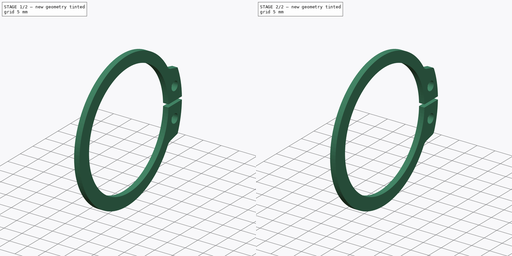
[diagram: build sequence overview — one tinted view per stage of 2, left to right]
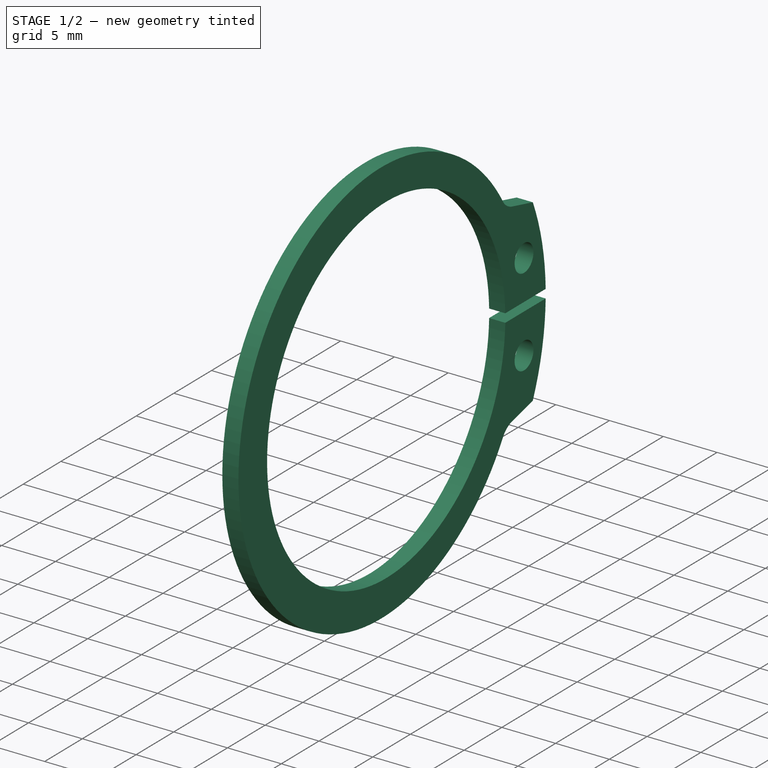
[diagram: stage 1 of 2 — iso view after this stage's code; geometry added in this stage tinted green]
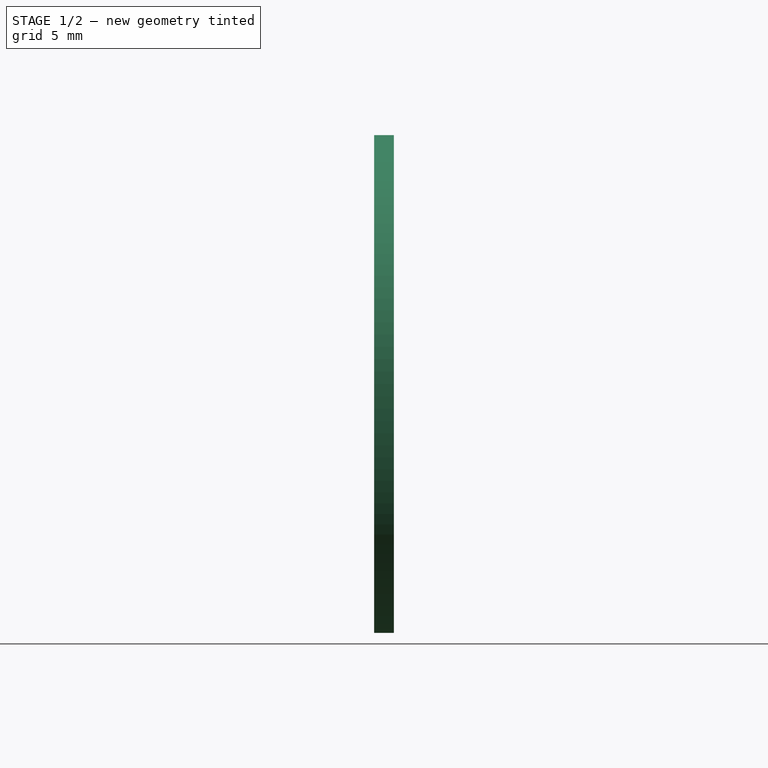
[diagram: stage 1 of 2 — front view after this stage's code; geometry added in this stage tinted green]
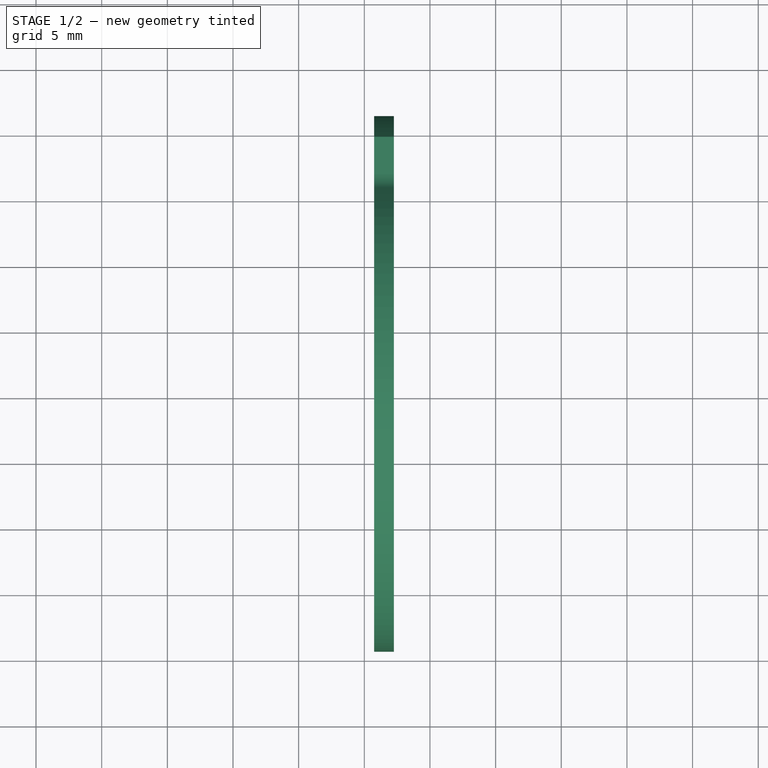
[diagram: stage 1 of 2 — top view after this stage's code; geometry added in this stage tinted green]
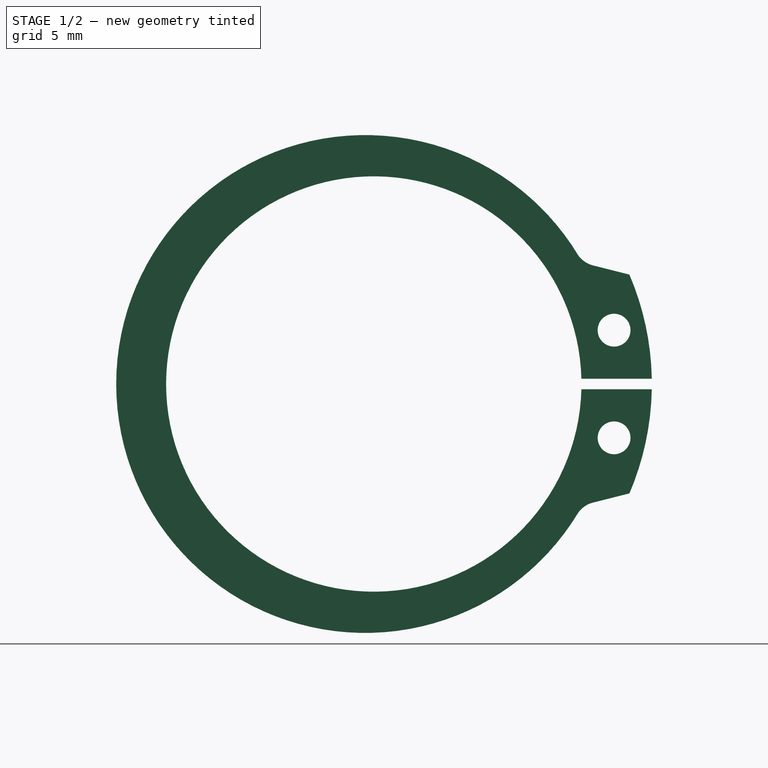
[diagram: stage 1 of 2 — right view after this stage's code; geometry added in this stage tinted green]
FCSTD DOCUMENT  (FreeCAD 0.15R4671 (Git))
Label: DIN471_CLASS_A_M34RetainingRings
License: CreativeCommons Attribution-ShareAlike
LicenseURL: http://creativecommons.org/licenses/by-sa/4.0/
objects: Sketcher::SketchObject×1, PartDesign::Pad×1, PartDesign::Mirrored×1, PartDesign::Fillet×1
note: 5 computed .brp shape members not serialized (recipe doc carries the construction recipe); baked Part::Feature solids carry a one-line shape summary decoded from their .brp

FEATURE [Sketcher::SketchObject] Sketch
  Placement = pos=(0.75,0,0) rot=(0.57735,0.57735,0.57735;2.0944rad)
  sketch-geometry (8):
    g0: Circle CenterX=18.3 CenterY=4.1 CenterZ=0 NormalX=0 NormalY=0 NormalZ=1 Radius=1.25
    g1: ArcOfCircle CenterX=0 CenterY=0 CenterZ=0 NormalX=0 NormalY=0 NormalZ=1 Radius=21.1762 StartAngle=0.0190115 EndAngle=0.404333
    g2: ArcOfCircle CenterX=0 CenterY=0 CenterZ=0 NormalX=0 NormalY=0 NormalZ=1 Radius=15.8161 StartAngle=0.0252672 EndAngle=3.14159
    g3: ArcOfCircle CenterX=-0.658031 CenterY=0 CenterZ=0 NormalX=0 NormalY=0 NormalZ=1 Radius=18.9581 StartAngle=0.543608 EndAngle=3.14159
    g4: LineSegment StartX=-19.6161 StartY=0 StartZ=0 EndX=-15.8161 EndY=0 EndZ=0
    g5: LineSegment StartX=15.8111 StartY=0.399586 StartZ=0 EndX=21.1724 EndY=0.402568 EndZ=0
    g6: LineSegment StartX=19.4687 StartY=8.33083 StartZ=0 EndX=16.6191 EndY=9.05211 EndZ=0
    g7: ArcOfCircle CenterX=17.1952 CenterY=10.9673 CenterZ=0 NormalX=0 NormalY=0 NormalZ=1 Radius=2 StartAngle=3.76137 EndAngle=4.42019
  constraints (27):
    c: Radius(g0) = 1.25
    c: DistanceY(g-1,g0) = 4.1
    c: DistanceX(g-1,g0) = 18.3
    c: Coincident(g1,g-1)
    c: Coincident(g2,g-1)
    c: PointOnObject(g2,g-1)
    c: PointOnObject(g3,g-1)
    c: PointOnObject(g3,g-1)
    c: Coincident(g4,g2)
    c: Horizontal(g4)
    c: Coincident(g4,g3)
    c: DistanceX(g4) = 3.8
    c: Coincident(g5,g2)
    c: Coincident(g5,g1)
    c: Coincident(g6,g1)
    c: Coincident(g7,g3)
    c: Coincident(g7,g6)
    c: Radius(g7) = 2
    c: DistanceX(g6) = -2.84956
    c: DistanceX(g-1,g3) = -0.658031
    c: Radius(g1) = 21.1762
    c: DistanceY(g-1,g1) = 0.402568
    c: DistanceY(g-1,g2) = 0.399586
    c: DistanceX(g-1,g3) = 15.5672
    c: DistanceX(g-1,g6) = 16.6191
    c: Radius(g2) = 15.8161
    c: DistanceY(g6) = 9.05211
FEATURE [PartDesign::Pad] Pad
  Length = 1.5
  Length2 = 100
  Placement = pos=(0.75,0,0) rot=(0.57735,0.57735,0.57735;2.0944rad)
  Sketch = -> Sketch
  Type = 0
FEATURE [PartDesign::Mirrored] Mirrored
  MirrorPlane = -> Sketch [H_Axis]
  Originals = -> [Pad]
  Placement = pos=(0.75,0,0) rot=(0.57735,0.57735,0.57735;2.0944rad)
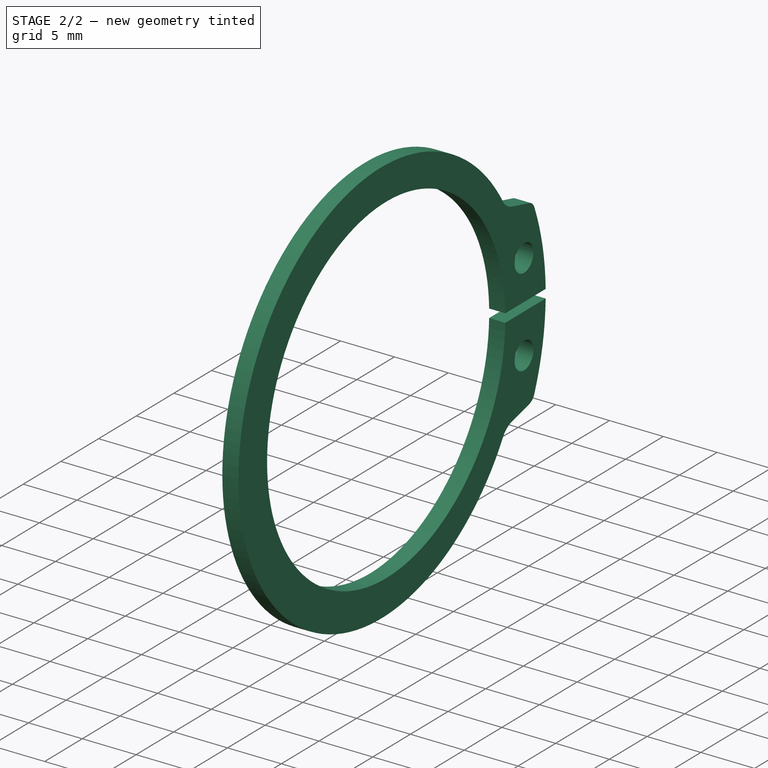
[diagram: stage 2 of 2 — iso view after this stage's code; geometry added in this stage tinted green]
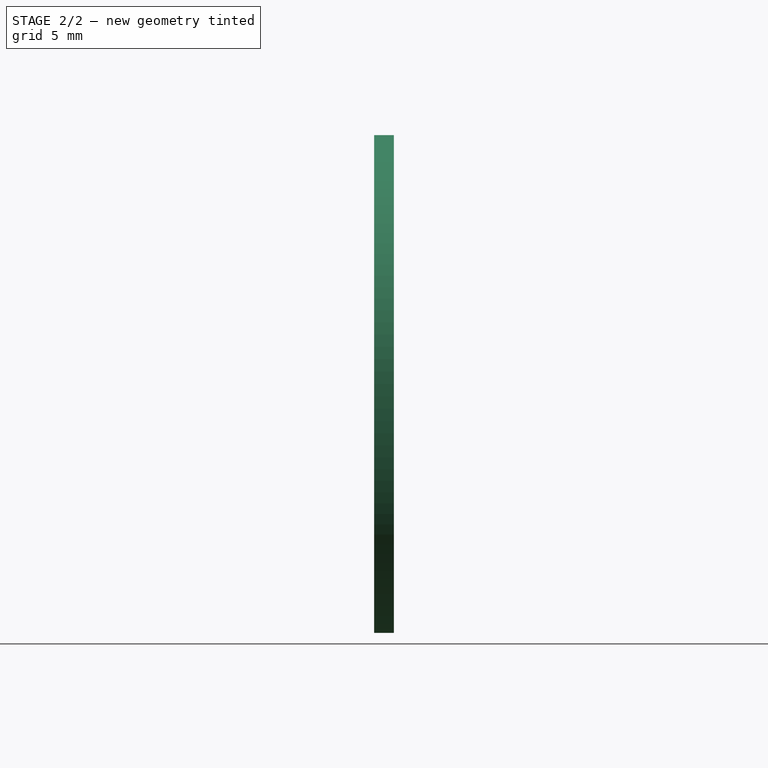
[diagram: stage 2 of 2 — front view after this stage's code; geometry added in this stage tinted green]
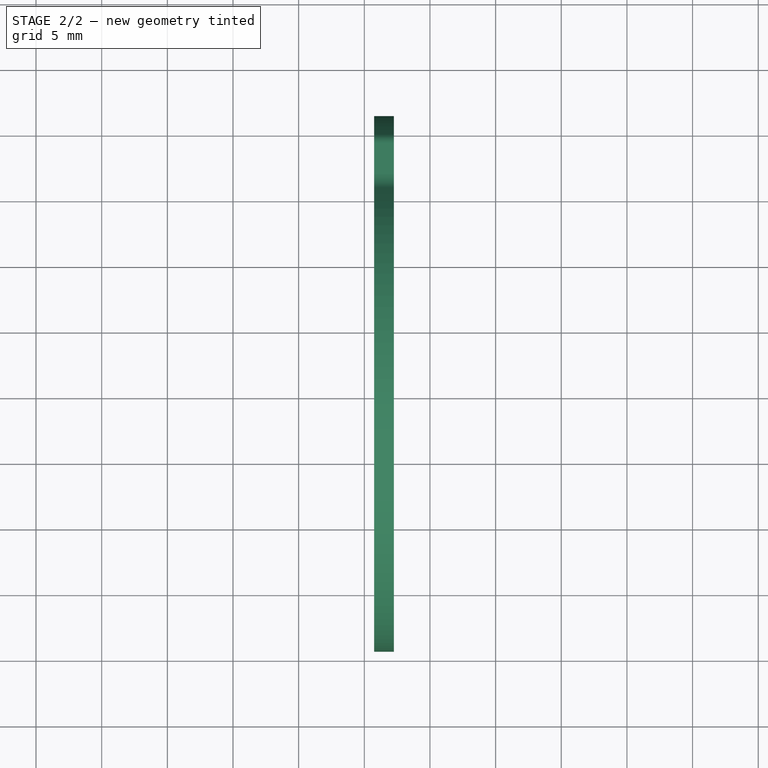
[diagram: stage 2 of 2 — top view after this stage's code; geometry added in this stage tinted green]
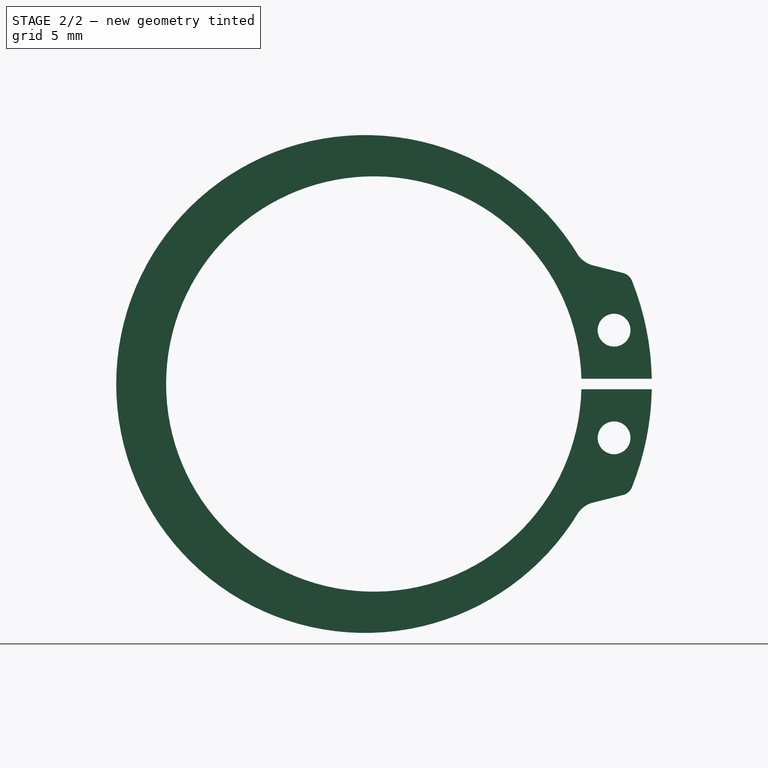
[diagram: stage 2 of 2 — right view after this stage's code; geometry added in this stage tinted green]
FEATURE [PartDesign::Fillet] Fillet
  Base = -> Mirrored [Edge5,Edge27]
  Placement = pos=(0.75,0,0) rot=(0.57735,0.57735,0.57735;2.0944rad)
  Radius = 1
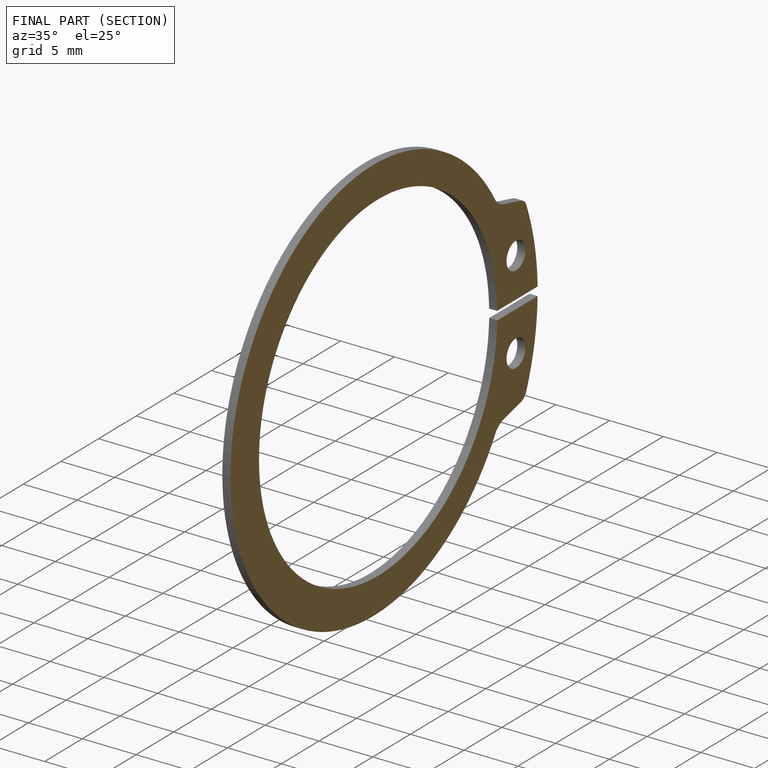
[diagram: finished part — half-section view (interior)]
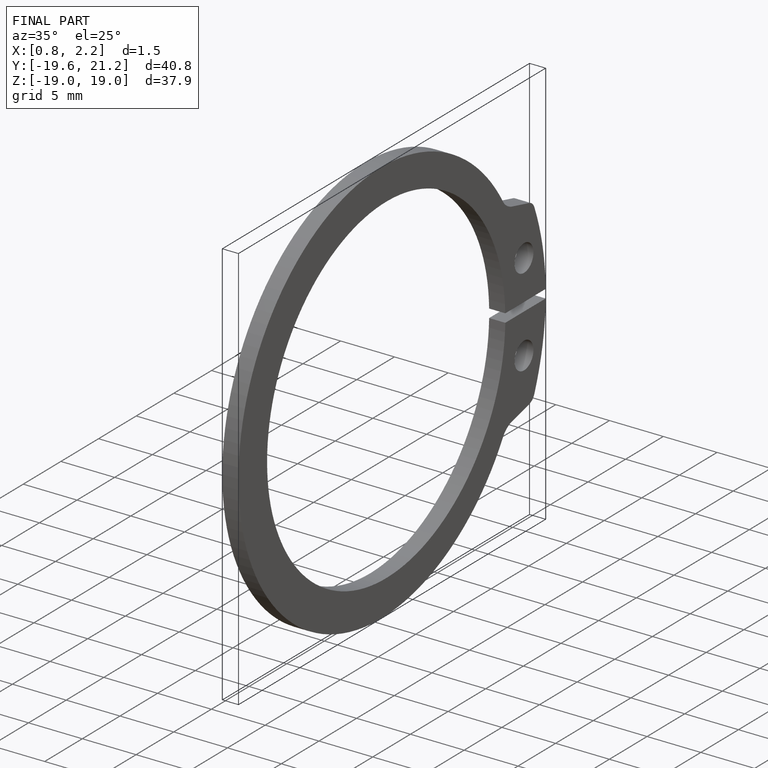
[diagram: finished part — iso view with bounding-box wireframe]
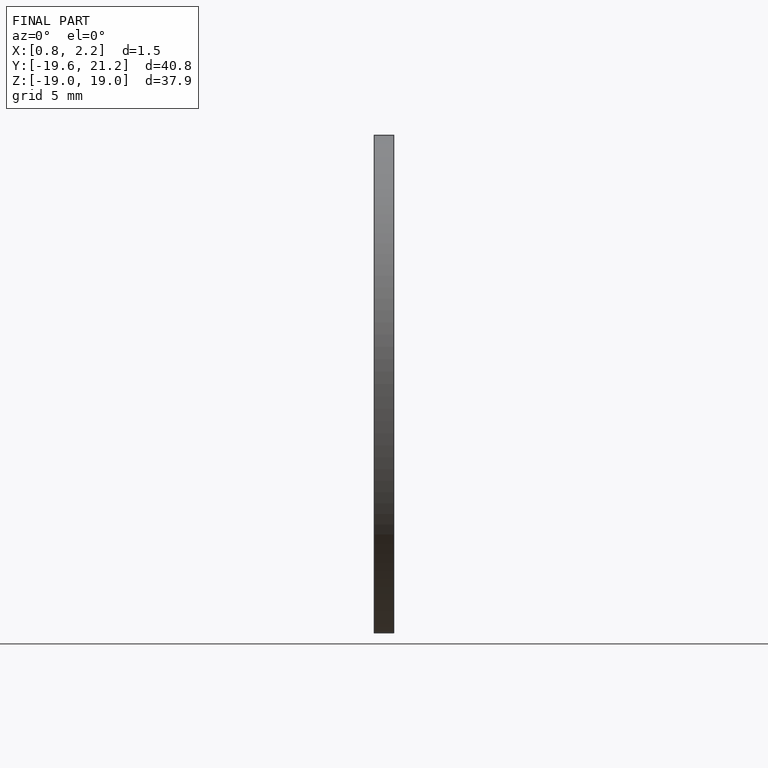
[diagram: finished part — front view with bounding-box wireframe]
